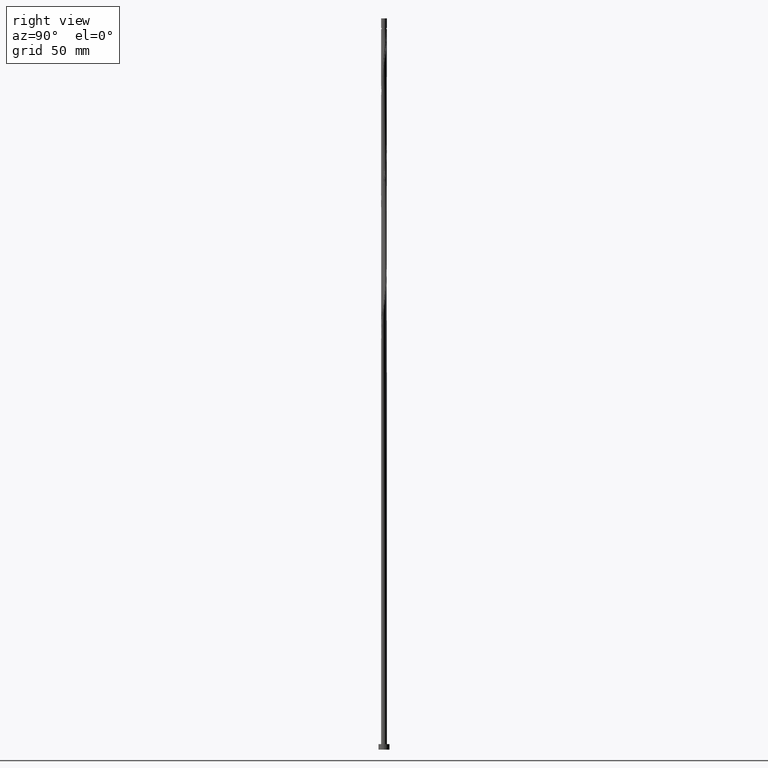
[diagram: clean part render]
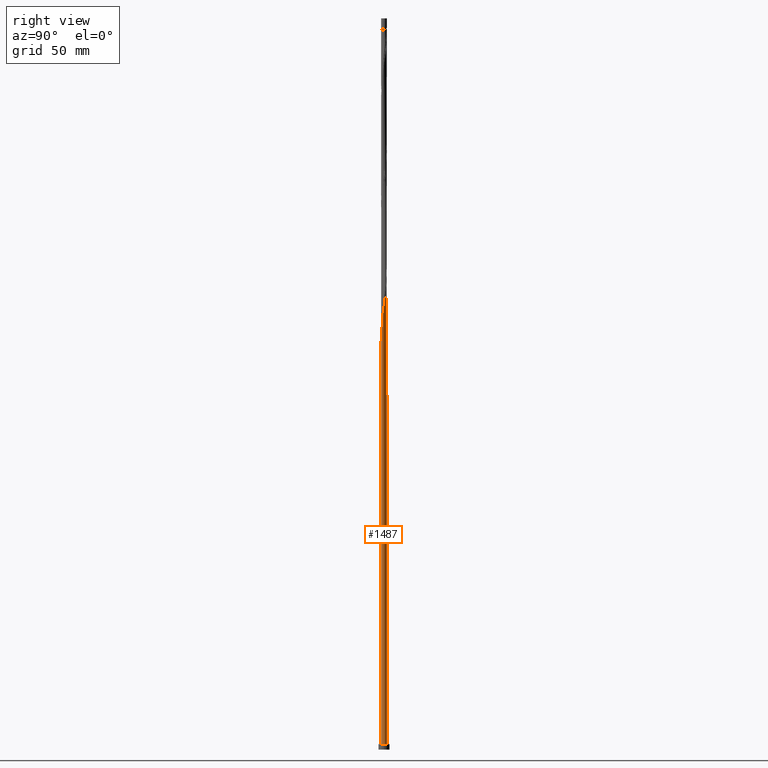
[diagram: same view with one face highlighted and labeled with its STEP entity id]
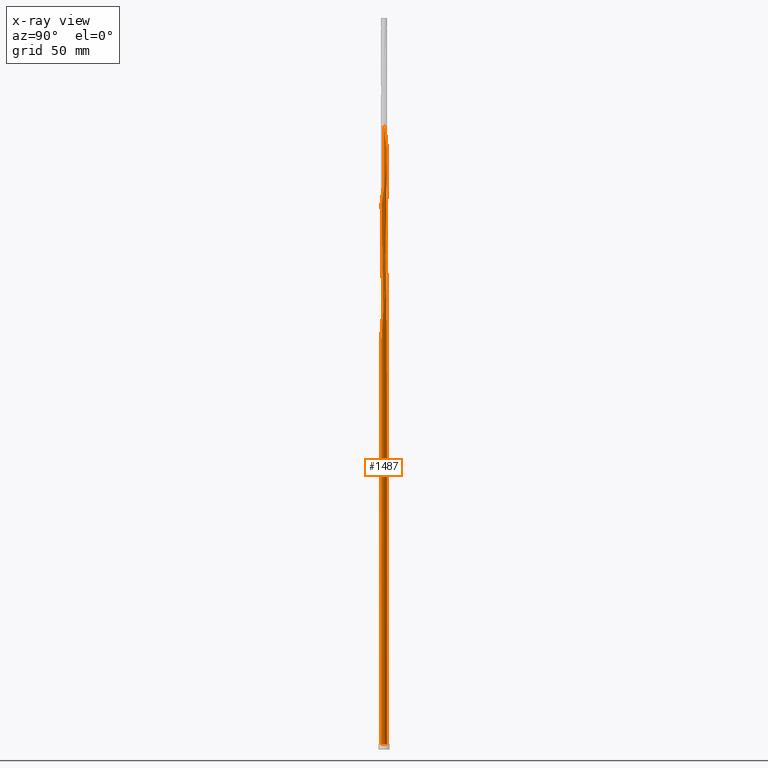
[diagram: x-ray of the same camera — body ghosted, the highlighted face saturated]
A machine part, right view. The second image highlights one B-rep face of the part: STEP entity #1487.
The next image is the same camera in x-ray: the body ghosted, the highlighted face saturated — about 0% of this face is hidden behind the body in this view.
In plain terms, the highlighted cylindrical surface (bore or boss wall) has radius 1.6 mm, axis along (-0, -0, -1).
Its self-contained STEP definition (entity closure, byte-faithful):
#13 = LINE ( 'NONE', #1012, #674 ) ;
#25 = CARTESIAN_POINT ( 'NONE',  ( -0.6374437949994088415, 1.467537191425403620, 329.6670008819284590 ) ) ;
#49 = CARTESIAN_POINT ( 'NONE',  ( -1.378299581423950482, 0.8125824658744328355, 203.0003342152616881 ) ) ;
#50 = ORIENTED_EDGE ( 'NONE', *, *, #1031, .T. ) ;
#56 = EDGE_CURVE ( 'NONE', #1558, #773, #667, .T. ) ;
#57 = CARTESIAN_POINT ( 'NONE',  ( -1.198729843196940870, -1.059739007033829505, 216.3336675485950593 ) ) ;
#59 = AXIS2_PLACEMENT_3D ( 'NONE', #199, #1085, #518 ) ;
#61 = CARTESIAN_POINT ( 'NONE',  ( -1.600000000000003419, 5.007719165922465151E-16, 208.6526687495178862 ) ) ;
#65 = CARTESIAN_POINT ( 'NONE',  ( 1.600000000000000089, 0.000000000000000000, 3.000000000000000000 ) ) ;
#86 = CARTESIAN_POINT ( 'NONE',  ( 1.463705440089979382, -0.6677173424018664205, 237.4447786597061167 ) ) ;
#89 = AXIS2_PLACEMENT_3D ( 'NONE', #1696, #1131, #547 ) ;
#93 = CARTESIAN_POINT ( 'NONE',  ( -0.3183959798741218816, 1.568000000000002281, 194.1114453263727455 ) ) ;
#95 = CARTESIAN_POINT ( 'NONE',  ( -1.065576345748935339, 1.205332782294399774, 266.3336675485949741 ) ) ;
#105 = CARTESIAN_POINT ( 'NONE',  ( -1.592691774424295881, -0.1527511429783694474, 276.3336675485951446 ) ) ;
#112 = CARTESIAN_POINT ( 'NONE',  ( -1.463705440089980048, 0.6677173424018664205, 270.7781119930394880 ) ) ;
#123 = CARTESIAN_POINT ( 'NONE',  ( 1.475620796545632718, 0.6409550136282932131, 313.0003342152617165 ) ) ;
#130 = CARTESIAN_POINT ( 'NONE',  ( 1.198729843196941980, 1.059739007033828839, 316.3336675485950309 ) ) ;
#139 = CARTESIAN_POINT ( 'NONE',  ( -0.3468938551971852413, 1.561942589606427623, 198.5558897708171173 ) ) ;
#150 = CARTESIAN_POINT ( 'NONE',  ( -0.3183959798741218816, 1.568000000000002725, 327.4447786597061736 ) ) ;
#171 = CARTESIAN_POINT ( 'NONE',  ( 0.8170583972648814974, 1.385891640840710037, 319.6670008819283453 ) ) ;
#180 = CARTESIAN_POINT ( 'NONE',  ( -1.592691774424292106, 0.1527511429783700303, 211.8892231041504886 ) ) ;
#199 = CARTESIAN_POINT ( 'NONE',  ( 0.000000000000000000, 0.000000000000000000, 194.1114453263728024 ) ) ;
#201 = CARTESIAN_POINT ( 'NONE',  ( 1.576636982355596128, 0.3201497939431683371, 244.1114453263727739 ) ) ;
#231 = CARTESIAN_POINT ( 'NONE',  ( -0.01456726740508597524, -1.599933684475815632, 225.2225564374839450 ) ) ;
#249 = CARTESIAN_POINT ( 'NONE',  ( -0.9286322574885250702, 1.302935965560769960, 265.2225564374839450 ) ) ;
#257 = CARTESIAN_POINT ( 'NONE',  ( 0.6374437949994082864, -1.467537191425403842, 296.3336675485950309 ) ) ;
#264 = CARTESIAN_POINT ( 'NONE',  ( -0.4831994207707031030, 1.534535234023666872, 261.8892231041505170 ) ) ;
#271 = CARTESIAN_POINT ( 'NONE',  ( 0.000000000000000000, 0.000000000000000000, 3.000000000000000000 ) ) ;
#274 = CARTESIAN_POINT ( 'NONE',  ( 1.179235034253427683, -1.081390185820699346, 300.7781119930394880 ) ) ;
#285 = CARTESIAN_POINT ( 'NONE',  ( -0.6374437949994088415, 1.467537191425403620, 263.0003342152617734 ) ) ;
#298 = CARTESIAN_POINT ( 'NONE',  ( 0.9522025912731624242, 1.285811115666949167, 318.5558897708172026 ) ) ;
#310 = CARTESIAN_POINT ( 'NONE',  ( -1.065576345748935339, 1.205332782294399774, 333.0003342152616597 ) ) ;
#319 = CARTESIAN_POINT ( 'NONE',  ( -1.600000000000003419, 0.09115797991428692404, 341.3804107734666786 ) ) ;
#348 = CARTESIAN_POINT ( 'NONE',  ( 1.292893722757919361, -0.9574475893469992505, 235.2225564374839450 ) ) ;
#351 = CARTESIAN_POINT ( 'NONE',  ( -1.600000000000002975, 0.09115797991429235025, 208.0470774401333642 ) ) ;
#366 = DIRECTION ( 'NONE',  ( 0.000000000000000000, 0.000000000000000000, 1.000000000000000000 ) ) ;
#369 = CARTESIAN_POINT ( 'NONE',  ( -0.8170583972648808313, -1.385891640840710703, 219.6670008819283737 ) ) ;
#378 = ORIENTED_EDGE ( 'NONE', *, *, #1128, .T. ) ;
#382 = ORIENTED_EDGE ( 'NONE', *, *, #56, .F. ) ;
#389 = CARTESIAN_POINT ( 'NONE',  ( 1.592691774424296103, 0.1527511429783686425, 243.0003342152617449 ) ) ;
#395 = CARTESIAN_POINT ( 'NONE',  ( -1.600000000000000089, 0.000000000000000000, 3.000000000000000000 ) ) ;
#397 = CARTESIAN_POINT ( 'NONE',  ( -0.9522025912731620911, -1.285811115666949167, 285.2225564374838882 ) ) ;
#408 = CARTESIAN_POINT ( 'NONE',  ( -0.3468938551971867401, -1.561942589606430731, 289.6670008819283453 ) ) ;
#415 = CARTESIAN_POINT ( 'NONE',  ( -1.608746566492995189, 0.01464750798642927045, 275.2225564374839450 ) ) ;
#423 = CARTESIAN_POINT ( 'NONE',  ( 1.310112901112439054, 0.9337474235744706030, 248.5558897708172310 ) ) ;
#433 = CARTESIAN_POINT ( 'NONE',  ( 1.517125823071063140, -0.5082609929661733306, 305.2225564374839450 ) ) ;
#442 = CARTESIAN_POINT ( 'NONE',  ( -1.600000000000003419, 5.007719165922465151E-16, 208.6526687495179146 ) ) ;
#460 = VERTEX_POINT ( 'NONE', #1252 ) ;
#464 = CARTESIAN_POINT ( 'NONE',  ( -1.310112901112435280, 0.9337474235744698259, 206.3336675485949456 ) ) ;
#472 = CARTESIAN_POINT ( 'NONE',  ( -1.292893722757919583, 0.9574475893469992505, 335.2225564374839450 ) ) ;
#492 = CARTESIAN_POINT ( 'NONE',  ( 1.608746566492995189, -0.01464750798642979607, 241.8892231041506022 ) ) ;
#511 = CARTESIAN_POINT ( 'NONE',  ( -1.600000000000003642, -0.07655039885879927342, 209.1612172750819809 ) ) ;
#518 = DIRECTION ( 'NONE',  ( 0.000000000000000000, 1.000000000000000000, -5.204170427930421283E-14 ) ) ;
#522 = CARTESIAN_POINT ( 'NONE',  ( -0.5110606366066611228, -1.525482576237568111, 221.8892231041505738 ) ) ;
#525 = ORIENTED_EDGE ( 'NONE', *, *, #1887, .T. ) ;
#531 = CARTESIAN_POINT ( 'NONE',  ( -1.475620796545632274, -0.6409550136282941013, 213.0003342152616312 ) ) ;
#533 =( BOUNDED_CURVE ( )  B_SPLINE_CURVE ( 2, ( #1065, #511, #1650, #1099, #1660, #531, #653, #675, #57, #811, #1231, #369, #1527, #522, #930, #664, #231, #942, #1814, #1825, #1208, #780, #1241, #952, #1391, #348, #1504, #86, #1837, #1107, #1689, #492, #389, #201, #962, #1548, #1399, #423, #1588, #1717, #971, #1261, #989, #1708, #1431, #1140, #1296, #717, #701, #264, #285, #1278, #249, #95, #1408, #709, #829, #112, #1736, #856, #1698, #415, #105, #838, #1854, #995, #1726, #1573, #847, #1565, #397, #693, #1133, #1581, #408, #1846, #1004, #1877, #1149, #1269, #257, #685, #549, #1424, #274, #576, #980, #540, #433, #1123, #1414, #1116, #1861, #558, #1556, #123, #1286, #1869, #130, #567, #298, #171, #873, #1042, #1776, #1188, #744, #1450, #150, #751, #25, #1766, #736, #310, #1315, #472, #1626, #1033, #1617, #1023, #1746, #319, #620 ),
 .UNSPECIFIED., .F., .T. ) 
 B_SPLINE_CURVE_WITH_KNOTS ( ( 3, 2, 2, 2, 2, 2, 2, 2, 2, 2, 2, 2, 2, 2, 2, 2, 2, 2, 2, 2, 2, 2, 2, 2, 2, 2, 2, 2, 2, 2, 2, 2, 2, 2, 2, 2, 2, 2, 2, 2, 2, 2, 2, 2, 2, 2, 2, 2, 2, 2, 2, 2, 2, 2, 2, 2, 2, 2, 2, 2, 2, 3 ),
 ( 0.05452860127731135736, 0.05833333333333334814, 0.06666666666666665186, 0.07499999999999995559, 0.08333333333333337034, 0.09166666666666667407, 0.09999999999999997780, 0.1083333333333332815, 0.1166666666666666963, 0.1250000000000000000, 0.1333333333333333037, 0.1416666666666667185, 0.1500000000000000222, 0.1583333333333333259, 0.1666666666666666297, 0.1750000000000000444, 0.1833333333333333481, 0.1916666666666666519, 0.1999999999999999556, 0.2083333333333333703, 0.2166666666666666741, 0.2249999999999999778, 0.2333333333333332815, 0.2416666666666666963, 0.2500000000000000000, 0.2583333333333333037, 0.2666666666666667185, 0.2750000000000000222, 0.2833333333333333259, 0.2916666666666666297, 0.3000000000000000444, 0.3083333333333333481, 0.3166666666666666519, 0.3249999999999999556, 0.3333333333333333703, 0.3416666666666666741, 0.3499999999999999778, 0.3583333333333332815, 0.3666666666666666963, 0.3750000000000000000, 0.3833333333333333037, 0.3916666666666667185, 0.4000000000000000222, 0.4083333333333333259, 0.4166666666666666297, 0.4250000000000000444, 0.4333333333333333481, 0.4416666666666666519, 0.4499999999999999556, 0.4583333333333333703, 0.4666666666666666741, 0.4749999999999999778, 0.4833333333333332815, 0.4916666666666666963, 0.5000000000000000000, 0.5083333333333333037, 0.5166666666666666075, 0.5250000000000000222, 0.5333333333333333259, 0.5416666666666667407, 0.5500000000000000444, 0.5545286012773116280 ),
 .UNSPECIFIED. ) 
 CURVE ( )  GEOMETRIC_REPRESENTATION_ITEM ( )  RATIONAL_B_SPLINE_CURVE ( ( 0.9066196499552956478, 0.9068171577857082610, 0.9090909090910074264, 0.9041108139712554781, 0.9090909090910074264, 0.9041108139712554781, 0.9090909090910074264, 0.9041108139712554781, 0.9090909090910074264, 0.9041108139712554781, 0.9090909090910074264, 0.9041108139712554781, 0.9090909090910074264, 0.9041108139712554781, 0.9090909090910074264, 0.9041108139712554781, 0.9090909090910074264, 0.9041108139712554781, 0.9090909090910074264, 0.9041108139712554781, 0.9090909090910074264, 0.9041108139712554781, 0.9090909090910074264, 0.9041108139712554781, 0.9090909090910074264, 0.9041108139712554781, 0.9090909090910074264, 0.9041108139712554781, 0.9090909090910074264, 0.9041108139712554781, 0.9090909090910074264, 0.9041108139712554781, 0.9090909090910074264, 0.9041108139712554781, 0.9090909090910074264, 0.9041108139712554781, 0.9090909090910074264, 0.9041108139712554781, 0.9090909090910074264, 0.9041108139712554781, 0.9090909090910074264, 0.9041108139712554781, 0.9090909090910074264, 0.9041108139712554781, 0.9090909090910074264, 0.9041108139712554781, 0.9090909090910074264, 0.9041108139712554781, 0.9090909090910074264, 0.9041108139712554781, 0.9090909090910074264, 0.9041108139712554781, 0.9090909090910074264, 0.9041108139712554781, 0.9090909090910074264, 0.9041108139712554781, 0.9090909090910074264, 0.9041108139712554781, 0.9090909090910074264, 0.9041108139712554781, 0.9090909090910074264, 0.9041108139712554781, 0.9090909090910074264, 0.9041108139712554781, 0.9090909090910074264, 0.9041108139712554781, 0.9090909090910074264, 0.9041108139712554781, 0.9090909090910074264, 0.9041108139712554781, 0.9090909090910074264, 0.9041108139712554781, 0.9090909090910074264, 0.9041108139712554781, 0.9090909090910074264, 0.9041108139712554781, 0.9090909090910074264, 0.9041108139712554781, 0.9090909090910074264, 0.9041108139712554781, 0.9090909090910074264, 0.9041108139712554781, 0.9090909090910074264, 0.9041108139712554781, 0.9090909090910074264, 0.9041108139712554781, 0.9090909090910074264, 0.9041108139712554781, 0.9090909090910074264, 0.9041108139712554781, 0.9090909090910074264, 0.9041108139712554781, 0.9090909090910074264, 0.9041108139712554781, 0.9090909090910074264, 0.9041108139712554781, 0.9090909090910074264, 0.9041108139712554781, 0.9090909090910074264, 0.9041108139712554781, 0.9090909090910074264, 0.9041108139712554781, 0.9090909090910074264, 0.9041108139712554781, 0.9090909090910074264, 0.9041108139712554781, 0.9090909090910074264, 0.9041108139712554781, 0.9090909090910074264, 0.9041108139712554781, 0.9090909090910074264, 0.9041108139712554781, 0.9090909090910074264, 0.9041108139712554781, 0.9090909090910074264, 0.9041108139712554781, 0.9090909090910074264, 0.9041108139712554781, 0.9090909090910074264, 0.9041108139712554781, 0.9090909090910074264, 0.9063845652765544214, 0.9066196499552956478 ) ) 
 REPRESENTATION_ITEM ( '' )  );
#540 = CARTESIAN_POINT ( 'NONE',  ( 1.463705440089979382, -0.6677173424018664205, 304.1114453263729160 ) ) ;
#542 = EDGE_CURVE ( 'NONE', #773, #460, #533, .T. ) ;
#545 = DIRECTION ( 'NONE',  ( 0.000000000000000000, 0.000000000000000000, 1.000000000000000000 ) ) ;
#547 = DIRECTION ( 'NONE',  ( -1.000000000000000000, 0.000000000000000000, 0.000000000000000000 ) ) ;
#549 = CARTESIAN_POINT ( 'NONE',  ( 0.9286322574885248482, -1.302935965560770404, 298.5558897708171457 ) ) ;
#553 = ORIENTED_EDGE ( 'NONE', *, *, #791, .F. ) ;
#558 = CARTESIAN_POINT ( 'NONE',  ( 1.576636982355596128, 0.3201497939431683371, 310.7781119930394880 ) ) ;
#567 = CARTESIAN_POINT ( 'NONE',  ( 1.087346785281443129, 1.185730590493188075, 317.4447786597061167 ) ) ;
#576 = CARTESIAN_POINT ( 'NONE',  ( 1.292893722757919361, -0.9574475893469992505, 301.8892231041505738 ) ) ;
#581 = VERTEX_POINT ( 'NONE', #1196 ) ;
#584 = CARTESIAN_POINT ( 'NONE',  ( 0.3183959798741222702, 1.567999999999998950, 194.1114453263727739 ) ) ;
#592 = CARTESIAN_POINT ( 'NONE',  ( -1.576636982355592576, 0.3201497939431683371, 210.7781119930393743 ) ) ;
#609 = AXIS2_PLACEMENT_3D ( 'NONE', #271, #545, #817 ) ;
#620 = CARTESIAN_POINT ( 'NONE',  ( -1.600000000000003419, -5.306687474335745902E-16, 341.9860020828512575 ) ) ;
#625 = CARTESIAN_POINT ( 'NONE',  ( -0.9286322574885250702, 1.302935965560769960, 198.5558897708172594 ) ) ;
#635 = CARTESIAN_POINT ( 'NONE',  ( -1.463705440089980048, 0.6677173424018664205, 204.1114453263727739 ) ) ;
#653 = CARTESIAN_POINT ( 'NONE',  ( -1.392866848829035664, -0.7873512186013824632, 214.1114453263728592 ) ) ;
#662 = DIRECTION ( 'NONE',  ( -0.000000000000000000, -0.000000000000000000, -1.000000000000000000 ) ) ;
#664 = CARTESIAN_POINT ( 'NONE',  ( -0.1827270737877121909, -1.598402602975293352, 224.1114453263727455 ) ) ;
#667 =( BOUNDED_CURVE ( )  B_SPLINE_CURVE ( 2, ( #1644, #755, #1090, #1346, #625, #945, #1234, #1069, #49, #635, #1214, #1653, #1808, #351, #61 ),
 .UNSPECIFIED., .F., .T. ) 
 B_SPLINE_CURVE_WITH_KNOTS ( ( 3, 2, 2, 2, 2, 2, 2, 3 ),
 ( 0.000000000000000000, 0.008333333333333303727, 0.01666666666666671848, 0.02500000000000002220, 0.03333333333333332593, 0.04166666666666662966, 0.05000000000000004441, 0.05452860127731135736 ),
 .UNSPECIFIED. ) 
 CURVE ( )  GEOMETRIC_REPRESENTATION_ITEM ( )  RATIONAL_B_SPLINE_CURVE ( ( 0.9090909090910074264, 0.9041108139712554781, 0.9090909090910074264, 0.9041108139712554781, 0.9090909090910074264, 0.9041108139712554781, 0.9090909090910074264, 0.9041108139712554781, 0.9090909090910074264, 0.9041108139712554781, 0.9090909090910074264, 0.9041108139712554781, 0.9090909090910074264, 0.9063845652765545324, 0.9066196499552956478 ) ) 
 REPRESENTATION_ITEM ( '' )  );
#672 = CARTESIAN_POINT ( 'NONE',  ( 0.000000000000000000, 0.000000000000000000, 3.000000000000000000 ) ) ;
#674 = VECTOR ( 'NONE', #1596, 1000.000000000000000 ) ;
#675 = CARTESIAN_POINT ( 'NONE',  ( -1.310112901112438832, -0.9337474235744711581, 215.2225564374839166 ) ) ;
#685 = CARTESIAN_POINT ( 'NONE',  ( 0.7916881692281142469, -1.400539148827139924, 297.4447786597061167 ) ) ;
#693 = CARTESIAN_POINT ( 'NONE',  ( -0.8170583972648808313, -1.385891640840710703, 286.3336675485950877 ) ) ;
#701 = CARTESIAN_POINT ( 'NONE',  ( -0.3183959798741218816, 1.568000000000002725, 260.7781119930396017 ) ) ;
#709 = CARTESIAN_POINT ( 'NONE',  ( -1.292893722757919583, 0.9574475893469992505, 268.5558897708172594 ) ) ;
#717 = CARTESIAN_POINT ( 'NONE',  ( -0.1535925389775400218, 1.601464765976338356, 259.6670008819282884 ) ) ;
#725 = CARTESIAN_POINT ( 'NONE',  ( -0.1827270737877114692, 1.598402602975290243, 197.4447786597060599 ) ) ;
#729 = CIRCLE ( 'NONE', #1765, 1.600000000000000089 ) ;
#735 = EDGE_CURVE ( 'NONE', #1517, #581, #796, .T. ) ;
#736 = CARTESIAN_POINT ( 'NONE',  ( -0.9286322574885250702, 1.302935965560769960, 331.8892231041505738 ) ) ;
#744 = CARTESIAN_POINT ( 'NONE',  ( 0.01456726740508623892, 1.599933684475816076, 325.2225564374839450 ) ) ;
#751 = CARTESIAN_POINT ( 'NONE',  ( -0.4831994207707031030, 1.534535234023666872, 328.5558897708172594 ) ) ;
#755 = CARTESIAN_POINT ( 'NONE',  ( -0.4831994207707031030, 1.534535234023666872, 195.2225564374838882 ) ) ;
#773 = VERTEX_POINT ( 'NONE', #442 ) ;
#780 = CARTESIAN_POINT ( 'NONE',  ( 0.7916881692281142469, -1.400539148827139924, 230.7781119930394595 ) ) ;
#791 = EDGE_CURVE ( 'NONE', #460, #1517, #13, .T. ) ;
#796 =( BOUNDED_CURVE ( )  B_SPLINE_CURVE ( 2, ( #1342, #884, #180, #592, #1052, #1325, #1178, #464, #1637, #1168, #891, #864, #1473, #1757, #139, #725, #1305, #1888, #584 ),
 .UNSPECIFIED., .F., .T. ) 
 B_SPLINE_CURVE_WITH_KNOTS ( ( 3, 2, 2, 2, 2, 2, 2, 2, 2, 3 ),
 ( 0.9295286012773114059, 0.9333333333333333481, 0.9416666666666666519, 0.9499999999999999556, 0.9583333333333333703, 0.9666666666666666741, 0.9749999999999999778, 0.9833333333333332815, 0.9916666666666666963, 1.000000000000000000 ),
 .UNSPECIFIED. ) 
 CURVE ( )  GEOMETRIC_REPRESENTATION_ITEM ( )  RATIONAL_B_SPLINE_CURVE ( ( 0.9066196499552885424, 0.9068171577857011556, 0.9090909090910003210, 0.9041108139712482616, 0.9090909090910003210, 0.9041108139712482616, 0.9090909090910003210, 0.9041108139712482616, 0.9090909090910003210, 0.9041108139712482616, 0.9090909090910003210, 0.9041108139712482616, 0.9090909090910003210, 0.9041108139712482616, 0.9090909090910003210, 0.9041108139712482616, 0.9090909090910003210, 0.9041108139712482616, 0.9090909090910003210 ) ) 
 REPRESENTATION_ITEM ( '' )  );
#811 = CARTESIAN_POINT ( 'NONE',  ( -1.087346785281442685, -1.185730590493188075, 217.4447786597061736 ) ) ;
#817 = DIRECTION ( 'NONE',  ( 1.000000000000000000, 0.000000000000000000, 0.000000000000000000 ) ) ;
#829 = CARTESIAN_POINT ( 'NONE',  ( -1.378299581423950482, 0.8125824658744328355, 269.6670008819284021 ) ) ;
#837 = EDGE_CURVE ( 'NONE', #1558, #581, #1857, .T. ) ;
#838 = CARTESIAN_POINT ( 'NONE',  ( -1.576636982355596128, -0.3201497939431685036, 277.4447786597060031 ) ) ;
#841 = EDGE_LOOP ( 'NONE', ( #553, #1467, #378, #50, #525, #1175, #382, #1630, #1780 ) ) ;
#847 = CARTESIAN_POINT ( 'NONE',  ( -1.198729843196940870, -1.059739007033829505, 283.0003342152617165 ) ) ;
#856 = CARTESIAN_POINT ( 'NONE',  ( -1.570546206052145566, 0.3488046435304787418, 273.0003342152616597 ) ) ;
#864 = CARTESIAN_POINT ( 'NONE',  ( -0.8170583972648782778, 1.385891640840708261, 201.8892231041505454 ) ) ;
#873 = CARTESIAN_POINT ( 'NONE',  ( 0.6640595169357708105, 1.455687108539139851, 320.7781119930394880 ) ) ;
#884 = CARTESIAN_POINT ( 'NONE',  ( -1.599999999999999867, 0.07655039885880095263, 212.3950067109968813 ) ) ;
#891 = CARTESIAN_POINT ( 'NONE',  ( -0.9522025912731589825, 1.285811115666947169, 203.0003342152615744 ) ) ;
#918 = LINE ( 'NONE', #1679, #1181 ) ;
#930 = CARTESIAN_POINT ( 'NONE',  ( -0.3468938551971867401, -1.561942589606430731, 223.0003342152617165 ) ) ;
#942 = CARTESIAN_POINT ( 'NONE',  ( 0.1535925389775408545, -1.601464765976337690, 226.3336675485950025 ) ) ;
#945 = CARTESIAN_POINT ( 'NONE',  ( -1.065576345748935339, 1.205332782294399774, 199.6670008819282884 ) ) ;
#952 = CARTESIAN_POINT ( 'NONE',  ( 1.065576345748934894, -1.205332782294399996, 233.0003342152616312 ) ) ;
#962 = CARTESIAN_POINT ( 'NONE',  ( 1.526128889450614867, 0.4805524037857308861, 245.2225564374839450 ) ) ;
#971 = CARTESIAN_POINT ( 'NONE',  ( 0.9522025912731624242, 1.285811115666949167, 251.8892231041505738 ) ) ;
#980 = CARTESIAN_POINT ( 'NONE',  ( 1.378299581423950038, -0.8125824658744331686, 303.0003342152616028 ) ) ;
#989 = CARTESIAN_POINT ( 'NONE',  ( 0.6640595169357708105, 1.455687108539139851, 254.1114453263728024 ) ) ;
#995 = CARTESIAN_POINT ( 'NONE',  ( -1.475620796545632274, -0.6409550136282941013, 279.6670008819283453 ) ) ;
#1004 = CARTESIAN_POINT ( 'NONE',  ( -0.01456726740508597524, -1.599933684475815632, 291.8892231041505738 ) ) ;
#1012 = CARTESIAN_POINT ( 'NONE',  ( -1.600000000000000089, 0.000000000000000000, 400.0000000000000000 ) ) ;
#1023 = CARTESIAN_POINT ( 'NONE',  ( -1.570546206052145566, 0.3488046435304787418, 339.6670008819282884 ) ) ;
#1031 = EDGE_CURVE ( 'NONE', #1507, #1080, #729, .T. ) ;
#1033 = CARTESIAN_POINT ( 'NONE',  ( -1.463705440089980048, 0.6677173424018664205, 337.4447786597061736 ) ) ;
#1042 = CARTESIAN_POINT ( 'NONE',  ( 0.5110606366066613448, 1.525482576237568111, 321.8892231041505170 ) ) ;
#1052 = CARTESIAN_POINT ( 'NONE',  ( -1.526128889450610426, 0.4805524037857309971, 209.6670008819283169 ) ) ;
#1065 = CARTESIAN_POINT ( 'NONE',  ( -1.600000000000003419, 5.007719165922465151E-16, 208.6526687495178862 ) ) ;
#1069 = CARTESIAN_POINT ( 'NONE',  ( -1.292893722757919583, 0.9574475893469992505, 201.8892231041505738 ) ) ;
#1080 = VERTEX_POINT ( 'NONE', #65 ) ;
#1085 = DIRECTION ( 'NONE',  ( -1.925929944387236133E-29, -4.336808689942021523E-14, -1.000000000000000000 ) ) ;
#1090 = CARTESIAN_POINT ( 'NONE',  ( -0.6374437949994088415, 1.467537191425403620, 196.3336675485950877 ) ) ;
#1099 = CARTESIAN_POINT ( 'NONE',  ( -1.576636982355596128, -0.3201497939431685036, 210.7781119930395164 ) ) ;
#1107 = CARTESIAN_POINT ( 'NONE',  ( 1.570546206052145344, -0.3488046435304795745, 239.6670008819282884 ) ) ;
#1116 = CARTESIAN_POINT ( 'NONE',  ( 1.608746566492995189, -0.01464750798642979607, 308.5558897708172594 ) ) ;
#1123 = CARTESIAN_POINT ( 'NONE',  ( 1.570546206052145344, -0.3488046435304795745, 306.3336675485950309 ) ) ;
#1128 = EDGE_CURVE ( 'NONE', #773, #1507, #918, .T. ) ;
#1131 = DIRECTION ( 'NONE',  ( -0.000000000000000000, -0.000000000000000000, -1.000000000000000000 ) ) ;
#1133 = CARTESIAN_POINT ( 'NONE',  ( -0.6640595169357705885, -1.455687108539139185, 287.4447786597061736 ) ) ;
#1140 = CARTESIAN_POINT ( 'NONE',  ( 0.1827270737877125517, 1.598402602975293574, 257.4447786597061736 ) ) ;
#1149 = CARTESIAN_POINT ( 'NONE',  ( 0.3183959798741220482, -1.568000000000002725, 294.1114453263730297 ) ) ;
#1168 = CARTESIAN_POINT ( 'NONE',  ( -1.087346785281440020, 1.185730590493186298, 204.1114453263727171 ) ) ;
#1175 = ORIENTED_EDGE ( 'NONE', *, *, #1128, .F. ) ;
#1178 = CARTESIAN_POINT ( 'NONE',  ( -1.392866848829031889, 0.7873512186013813530, 207.4447786597060315 ) ) ;
#1181 = VECTOR ( 'NONE', #662, 1000.000000000000000 ) ;
#1188 = CARTESIAN_POINT ( 'NONE',  ( 0.1827270737877125517, 1.598402602975293574, 324.1114453263726887 ) ) ;
#1196 = CARTESIAN_POINT ( 'NONE',  ( 0.3183959798741222702, 1.567999999999998950, 194.1114453263727455 ) ) ;
#1208 = CARTESIAN_POINT ( 'NONE',  ( 0.6374437949994082864, -1.467537191425403842, 229.6670008819283737 ) ) ;
#1214 = CARTESIAN_POINT ( 'NONE',  ( -1.517125823071062696, 0.5082609929661726644, 205.2225564374839450 ) ) ;
#1231 = CARTESIAN_POINT ( 'NONE',  ( -0.9522025912731620911, -1.285811115666949167, 218.5558897708173163 ) ) ;
#1234 = CARTESIAN_POINT ( 'NONE',  ( -1.179235034253427905, 1.081390185820699346, 200.7781119930394595 ) ) ;
#1241 = CARTESIAN_POINT ( 'NONE',  ( 0.9286322574885248482, -1.302935965560770404, 231.8892231041506022 ) ) ;
#1252 = CARTESIAN_POINT ( 'NONE',  ( -1.600000000000003419, -5.306687474335745902E-16, 341.9860020828512575 ) ) ;
#1261 = CARTESIAN_POINT ( 'NONE',  ( 0.8170583972648814974, 1.385891640840710037, 253.0003342152617449 ) ) ;
#1269 = CARTESIAN_POINT ( 'NONE',  ( 0.4831994207707026034, -1.534535234023667538, 295.2225564374839450 ) ) ;
#1278 = CARTESIAN_POINT ( 'NONE',  ( -0.7916881692281143579, 1.400539148827139924, 264.1114453263728024 ) ) ;
#1286 = CARTESIAN_POINT ( 'NONE',  ( 1.392866848829035664, 0.7873512186013824632, 314.1114453263729160 ) ) ;
#1296 = CARTESIAN_POINT ( 'NONE',  ( 0.01456726740508623892, 1.599933684475816076, 258.5558897708172594 ) ) ;
#1305 = CARTESIAN_POINT ( 'NONE',  ( -0.01456726740508501594, 1.599933684475812079, 196.3336675485950025 ) ) ;
#1315 = CARTESIAN_POINT ( 'NONE',  ( -1.179235034253427905, 1.081390185820699346, 334.1114453263728024 ) ) ;
#1325 = CARTESIAN_POINT ( 'NONE',  ( -1.475620796545628721, 0.6409550136282935462, 208.5558897708171742 ) ) ;
#1342 = CARTESIAN_POINT ( 'NONE',  ( -1.599999999999999645, 2.765456852822875296E-16, 212.9035552365609192 ) ) ;
#1346 = CARTESIAN_POINT ( 'NONE',  ( -0.7916881692281143579, 1.400539148827139924, 197.4447786597062020 ) ) ;
#1391 = CARTESIAN_POINT ( 'NONE',  ( 1.179235034253427683, -1.081390185820699346, 234.1114453263728308 ) ) ;
#1397 = CYLINDRICAL_SURFACE ( 'NONE', #89, 1.600000000000000089 ) ;
#1399 = CARTESIAN_POINT ( 'NONE',  ( 1.392866848829035664, 0.7873512186013824632, 247.4447786597061452 ) ) ;
#1408 = CARTESIAN_POINT ( 'NONE',  ( -1.179235034253427905, 1.081390185820699346, 267.4447786597060599 ) ) ;
#1414 = CARTESIAN_POINT ( 'NONE',  ( 1.589646386272570711, -0.1817260757584538700, 307.4447786597061736 ) ) ;
#1424 = CARTESIAN_POINT ( 'NONE',  ( 1.065576345748934894, -1.205332782294399996, 299.6670008819283453 ) ) ;
#1431 = CARTESIAN_POINT ( 'NONE',  ( 0.3468938551971876283, 1.561942589606430509, 256.3336675485950309 ) ) ;
#1450 = CARTESIAN_POINT ( 'NONE',  ( -0.1535925389775400218, 1.601464765976338356, 326.3336675485950309 ) ) ;
#1467 = ORIENTED_EDGE ( 'NONE', *, *, #542, .F. ) ;
#1473 = CARTESIAN_POINT ( 'NONE',  ( -0.6640595169357688121, 1.455687108539136521, 200.7781119930393459 ) ) ;
#1487 = ADVANCED_FACE ( 'NONE', ( #1867 ), #1397, .T. ) ;
#1504 = CARTESIAN_POINT ( 'NONE',  ( 1.378299581423950038, -0.8125824658744331686, 236.3336675485950309 ) ) ;
#1507 = VERTEX_POINT ( 'NONE', #395 ) ;
#1517 = VERTEX_POINT ( 'NONE', #1546 ) ;
#1527 = CARTESIAN_POINT ( 'NONE',  ( -0.6640595169357705885, -1.455687108539139185, 220.7781119930395164 ) ) ;
#1546 = CARTESIAN_POINT ( 'NONE',  ( -1.599999999999999645, 2.765456852822875789E-16, 212.9035552365609192 ) ) ;
#1548 = CARTESIAN_POINT ( 'NONE',  ( 1.475620796545632718, 0.6409550136282932131, 246.3336675485950309 ) ) ;
#1556 = CARTESIAN_POINT ( 'NONE',  ( 1.526128889450614867, 0.4805524037857308861, 311.8892231041507443 ) ) ;
#1558 = VERTEX_POINT ( 'NONE', #93 ) ;
#1565 = CARTESIAN_POINT ( 'NONE',  ( -1.087346785281442685, -1.185730590493188075, 284.1114453263727455 ) ) ;
#1573 = CARTESIAN_POINT ( 'NONE',  ( -1.310112901112438832, -0.9337474235744711581, 281.8892231041505738 ) ) ;
#1581 = CARTESIAN_POINT ( 'NONE',  ( -0.5110606366066611228, -1.525482576237568111, 288.5558897708172594 ) ) ;
#1588 = CARTESIAN_POINT ( 'NONE',  ( 1.198729843196941980, 1.059739007033828839, 249.6670008819284305 ) ) ;
#1596 = DIRECTION ( 'NONE',  ( -0.000000000000000000, -0.000000000000000000, -1.000000000000000000 ) ) ;
#1617 = CARTESIAN_POINT ( 'NONE',  ( -1.517125823071062696, 0.5082609929661726644, 338.5558897708172594 ) ) ;
#1626 = CARTESIAN_POINT ( 'NONE',  ( -1.378299581423950482, 0.8125824658744328355, 336.3336675485951446 ) ) ;
#1630 = ORIENTED_EDGE ( 'NONE', *, *, #837, .T. ) ;
#1637 = CARTESIAN_POINT ( 'NONE',  ( -1.198729843196937539, 1.059739007033827951, 205.2225564374838029 ) ) ;
#1644 = CARTESIAN_POINT ( 'NONE',  ( -0.3183959798741218816, 1.568000000000002281, 194.1114453263727455 ) ) ;
#1650 = CARTESIAN_POINT ( 'NONE',  ( -1.592691774424295881, -0.1527511429783694474, 209.6670008819283169 ) ) ;
#1653 = CARTESIAN_POINT ( 'NONE',  ( -1.570546206052145566, 0.3488046435304787418, 206.3336675485950309 ) ) ;
#1658 = DIRECTION ( 'NONE',  ( 1.000000000000000000, 0.000000000000000000, 0.000000000000000000 ) ) ;
#1660 = CARTESIAN_POINT ( 'NONE',  ( -1.526128889450614867, -0.4805524037857314412, 211.8892231041505738 ) ) ;
#1679 = CARTESIAN_POINT ( 'NONE',  ( -1.600000000000000089, 0.000000000000000000, 400.0000000000000000 ) ) ;
#1689 = CARTESIAN_POINT ( 'NONE',  ( 1.589646386272570711, -0.1817260757584538700, 240.7781119930395164 ) ) ;
#1696 = CARTESIAN_POINT ( 'NONE',  ( 0.000000000000000000, 0.000000000000000000, 400.0000000000000000 ) ) ;
#1698 = CARTESIAN_POINT ( 'NONE',  ( -1.589646386272570711, 0.1817260757584537589, 274.1114453263728024 ) ) ;
#1708 = CARTESIAN_POINT ( 'NONE',  ( 0.5110606366066613448, 1.525482576237568111, 255.2225564374838598 ) ) ;
#1717 = CARTESIAN_POINT ( 'NONE',  ( 1.087346785281443129, 1.185730590493188075, 250.7781119930394311 ) ) ;
#1726 = CARTESIAN_POINT ( 'NONE',  ( -1.392866848829035664, -0.7873512186013824632, 280.7781119930395448 ) ) ;
#1736 = CARTESIAN_POINT ( 'NONE',  ( -1.517125823071062696, 0.5082609929661726644, 271.8892231041505738 ) ) ;
#1746 = CARTESIAN_POINT ( 'NONE',  ( -1.589646386272570711, 0.1817260757584537589, 340.7781119930394880 ) ) ;
#1757 = CARTESIAN_POINT ( 'NONE',  ( -0.5110606366066592354, 1.525482576237565224, 199.6670008819282600 ) ) ;
#1765 = AXIS2_PLACEMENT_3D ( 'NONE', #672, #366, #1658 ) ;
#1766 = CARTESIAN_POINT ( 'NONE',  ( -0.7916881692281143579, 1.400539148827139924, 330.7781119930395448 ) ) ;
#1776 = CARTESIAN_POINT ( 'NONE',  ( 0.3468938551971876283, 1.561942589606430509, 323.0003342152618302 ) ) ;
#1780 = ORIENTED_EDGE ( 'NONE', *, *, #735, .F. ) ;
#1808 = CARTESIAN_POINT ( 'NONE',  ( -1.589646386272570711, 0.1817260757584537589, 207.4447786597061736 ) ) ;
#1814 = CARTESIAN_POINT ( 'NONE',  ( 0.3183959798741220482, -1.568000000000002725, 227.4447786597061452 ) ) ;
#1825 = CARTESIAN_POINT ( 'NONE',  ( 0.4831994207707026034, -1.534535234023667538, 228.5558897708172026 ) ) ;
#1837 = CARTESIAN_POINT ( 'NONE',  ( 1.517125823071063140, -0.5082609929661733306, 238.5558897708172879 ) ) ;
#1846 = CARTESIAN_POINT ( 'NONE',  ( -0.1827270737877121909, -1.598402602975293352, 290.7781119930394311 ) ) ;
#1854 = CARTESIAN_POINT ( 'NONE',  ( -1.526128889450614867, -0.4805524037857314412, 278.5558897708172594 ) ) ;
#1857 = CIRCLE ( 'NONE', #59, 1.600000000000000089 ) ;
#1861 = CARTESIAN_POINT ( 'NONE',  ( 1.592691774424296103, 0.1527511429783686425, 309.6670008819284590 ) ) ;
#1867 = FACE_OUTER_BOUND ( 'NONE', #841, .T. ) ;
#1869 = CARTESIAN_POINT ( 'NONE',  ( 1.310112901112439054, 0.9337474235744706030, 315.2225564374837745 ) ) ;
#1877 = CARTESIAN_POINT ( 'NONE',  ( 0.1535925389775408545, -1.601464765976337690, 293.0003342152616028 ) ) ;
#1886 = CIRCLE ( 'NONE', #609, 1.600000000000000089 ) ;
#1887 = EDGE_CURVE ( 'NONE', #1080, #1507, #1886, .T. ) ;
#1888 = CARTESIAN_POINT ( 'NONE',  ( 0.1535925389775412708, 1.601464765976333915, 195.2225564374838882 ) ) ;